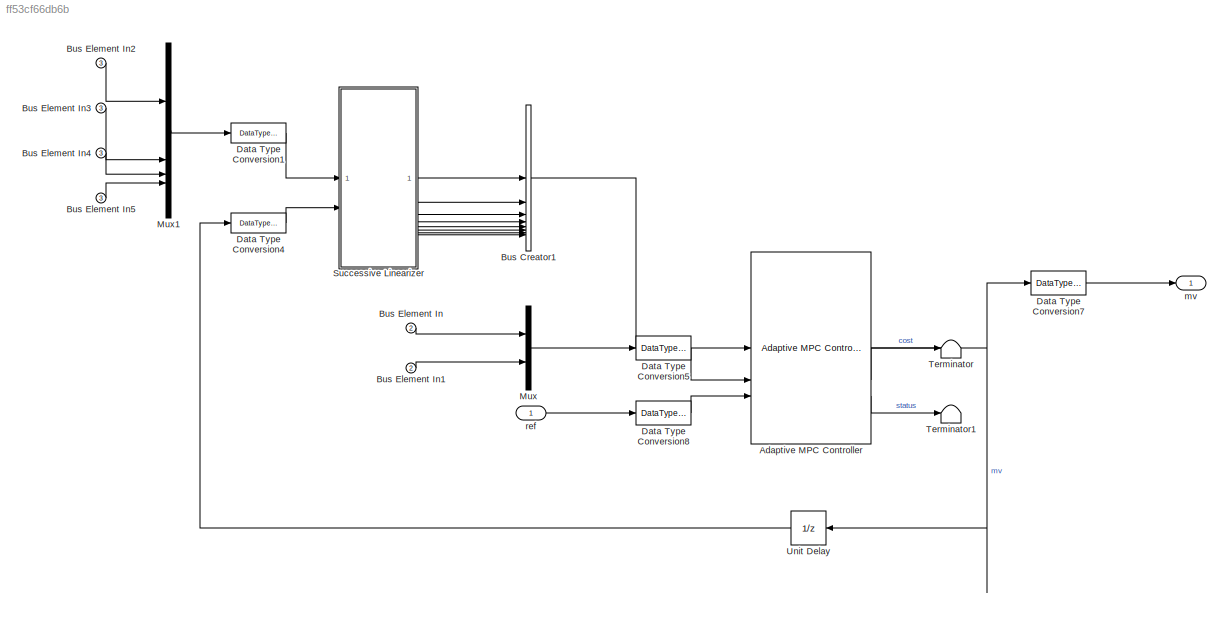
MODEL slx_ff53cf66db6b
KIND model
BLOCK [Reference] Adaptive MPC Controller  REF=mpclib/Adaptive MPC Controller  (lib defined in mdl_ae329e0e0455)
  SCDEnableBlockLinearizationSpecification = on
  SourceBlock = mpclib/Adaptive MPC Controller
  SourceType = Adaptive MPC
BLOCK [BusCreator] Bus Creator1
  DisplayOption = bar
  InheritFromInputs = on
  Inputs = 8
BLOCK [Inport] Bus Element In
  Port = 2
BLOCK [Inport] Bus Element In1
  Port = 2
BLOCK [Inport] Bus Element In2
  Port = 3
BLOCK [Inport] Bus Element In3
  Port = 3
BLOCK [Inport] Bus Element In4
  Port = 3
BLOCK [Inport] Bus Element In5
  Port = 3
BLOCK [DataTypeConversion] Data Type Conversion1
  OutDataTypeStr = single
  RndMeth = Floor
  SaturateOnIntegerOverflow = off
BLOCK [DataTypeConversion] Data Type Conversion4
  OutDataTypeStr = single
  RndMeth = Floor
  SaturateOnIntegerOverflow = off
BLOCK [DataTypeConversion] Data Type Conversion5
  OutDataTypeStr = single
  RndMeth = Floor
  SaturateOnIntegerOverflow = off
BLOCK [DataTypeConversion] Data Type Conversion7
  OutDataTypeStr = double
  RndMeth = Floor
  SaturateOnIntegerOverflow = off
BLOCK [DataTypeConversion] Data Type Conversion8
  OutDataTypeStr = single
  RndMeth = Floor
  SaturateOnIntegerOverflow = off
BLOCK [Mux] Mux
  DisplayOption = bar
  Inputs = 2
BLOCK [Mux] Mux1
  DisplayOption = bar
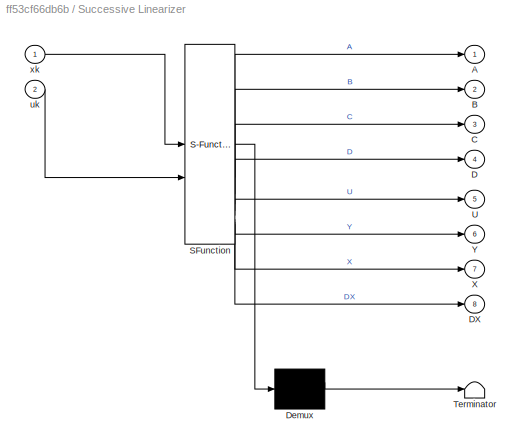
BLOCK [SubSystem] Successive Linearizer
  ErrorFcn = Stateflow.Translate.translate
  PermitHierarchicalResolution = ExplicitOnly
  SFBlockType = MATLAB Function
  TreatAsAtomicUnit = on
BLOCK [Demux] Successive Linearizer/ Demux 
  Outputs = 1
BLOCK [S-Function] Successive Linearizer/ SFunction 
  EnableBusSupport = off
  FunctionName = sf_sfun
  Parameters = TimeStep,param
  PortCounts = [2 9]
  SFcnIsStateOwnerBlock = off
  SFunctionDeploymentMode = off
  Tag = Stateflow S-Function 2
BLOCK [Terminator] Successive Linearizer/ Terminator 
BLOCK [Outport] Successive Linearizer/A
  VectorParamsAs1DForOutWhenUnconnected = off
BLOCK [Outport] Successive Linearizer/B
  Port = 2
  VectorParamsAs1DForOutWhenUnconnected = off
BLOCK [Outport] Successive Linearizer/C
  Port = 3
  VectorParamsAs1DForOutWhenUnconnected = off
BLOCK [Outport] Successive Linearizer/D
  Port = 4
  VectorParamsAs1DForOutWhenUnconnected = off
BLOCK [Outport] Successive Linearizer/DX
  Port = 8
  VectorParamsAs1DForOutWhenUnconnected = off
BLOCK [Outport] Successive Linearizer/U
  Port = 5
  VectorParamsAs1DForOutWhenUnconnected = off
BLOCK [Outport] Successive Linearizer/X
  Port = 7
  VectorParamsAs1DForOutWhenUnconnected = off
BLOCK [Outport] Successive Linearizer/Y
  Port = 6
  VectorParamsAs1DForOutWhenUnconnected = off
BLOCK [Inport] Successive Linearizer/uk
  Port = 2
BLOCK [Inport] Successive Linearizer/xk
BLOCK [Terminator] Terminator
BLOCK [Terminator] Terminator1
BLOCK [UnitDelay] Unit Delay
  HasFrameUpgradeWarning = on
  InitialCondition = u0
  SampleTime = -1
BLOCK [Outport] mv
  OutDataTypeStr = double
  PortDimensions = 2
  SamplingMode = Sample based
  SignalType = real
BLOCK [Inport] ref
  OutDataTypeStr = double
  PortDimensions = [2 1]
  SamplingMode = Sample based
  SignalType = real
NET Adaptive MPC Controller:1 -> Data Type Conversion7:1, Unit Delay:1
LINE Adaptive MPC Controller:2 -> Terminator:1
LINE Adaptive MPC Controller:3 -> Terminator1:1
LINE Bus Creator1:1 -> Adaptive MPC Controller:1
LINE Bus Element In1:1 -> Mux:2
LINE Bus Element In2:1 -> Mux1:1
LINE Bus Element In3:1 -> Mux1:2
LINE Bus Element In4:1 -> Mux1:3
LINE Bus Element In5:1 -> Mux1:4
LINE Bus Element In:1 -> Mux:1
LINE Data Type Conversion1:1 -> Successive Linearizer:1
LINE Data Type Conversion4:1 -> Successive Linearizer:2
LINE Data Type Conversion5:1 -> Adaptive MPC Controller:2
LINE Data Type Conversion7:1 -> mv:1
LINE Data Type Conversion8:1 -> Adaptive MPC Controller:3
LINE Mux1:1 -> Data Type Conversion1:1
LINE Mux:1 -> Data Type Conversion5:1
LINE Successive Linearizer:1 -> Bus Creator1:1
LINE Successive Linearizer:2 -> Bus Creator1:2
LINE Successive Linearizer:3 -> Bus Creator1:3
LINE Successive Linearizer:4 -> Bus Creator1:4
LINE Successive Linearizer:5 -> Bus Creator1:5
LINE Successive Linearizer:6 -> Bus Creator1:6
LINE Successive Linearizer:7 -> Bus Creator1:7
LINE Successive Linearizer:8 -> Bus Creator1:8
LINE Unit Delay:1 -> Data Type Conversion4:1
LINE ref:1 -> Data Type Conversion8:1
note: NET lines group one-source signal fan-out (src -> all destinations, sorted); 1:1 wires keep LINE
CHART Successive Linearizer states=1 transitions=1
  STATE_LABEL 'eML_blk_kernel()'
  STATE_LABEL "SCRIPT:\nfunction [A,B,C,D,U,Y,X,DX] = fcn(xk,uk,TimeStep,param)\n% Order of state, input and output\nnx = cast(4, 'like', xk);\nnu = cast(2, 'like', xk);\nny = cast(2, 'like', xk);\n% Initialize outputs\nA = zeros(nx,nx, 'like', xk);\nB = zeros(nx,nu, 'like', xk);\nC = zeros(ny,nx, 'like', xk);\nD = zeros(ny,nu, 'like', xk);\nU = zeros(nu,1, 'like', xk);\nY = zeros(ny,1, 'like', xk);\nX = zeros(nx,1, 'like', ...<+979ch>"
CHART  states=0 transitions=0
